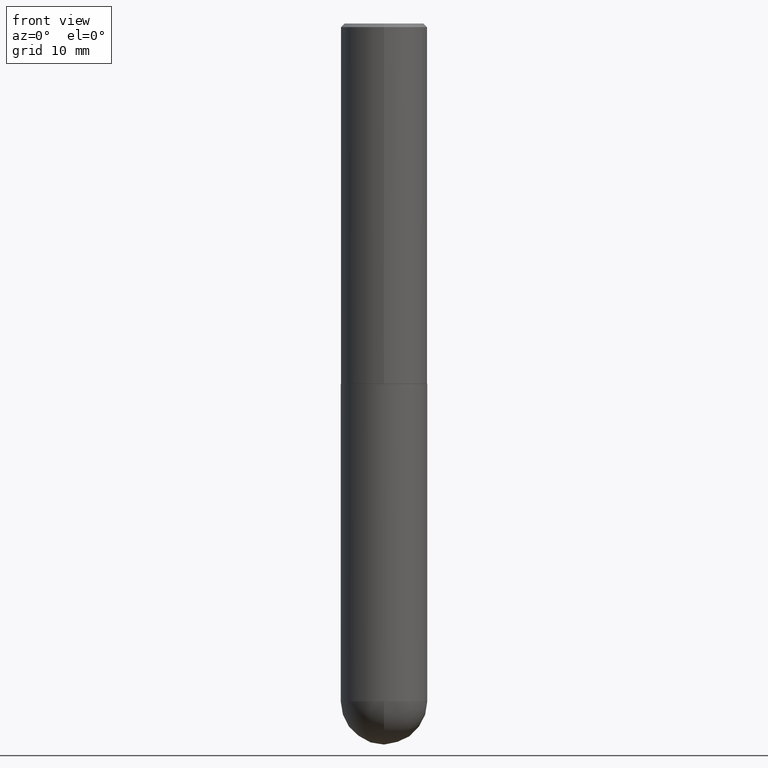
[diagram: clean part render]
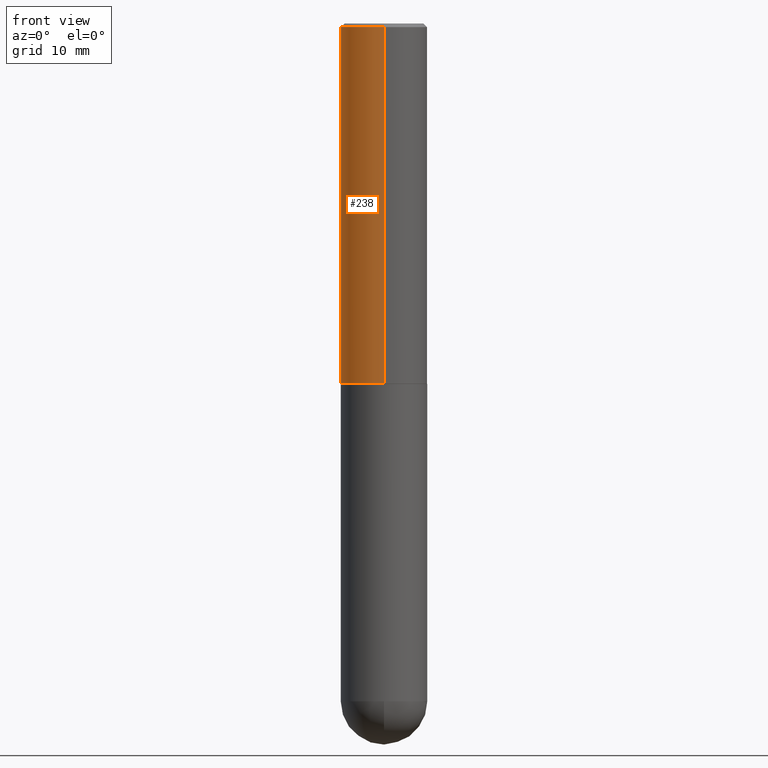
[diagram: same view with one face highlighted and labeled with its STEP entity id]
A machine part, front view. The second image highlights one B-rep face of the part: STEP entity #238.
In plain terms, the highlighted cylindrical surface (partial cylindrical patch) has radius 5.9995 mm, axis along (-0, 0, 1).
Its self-contained STEP definition (entity closure, byte-faithful):
#11 = VECTOR ( 'NONE', #204, 39.37007874015748143 ) ;
#23 = FACE_OUTER_BOUND ( 'NONE', #155, .T. ) ;
#41 = EDGE_CURVE ( 'NONE', #383, #289, #73, .T. ) ;
#51 = DIRECTION ( 'NONE',  ( -6.982962677686265922E-15, -1.000000000000000000, 3.493171675597534146E-15 ) ) ;
#70 = EDGE_CURVE ( 'NONE', #160, #131, #397, .T. ) ;
#73 = LINE ( 'NONE', #167, #11 ) ;
#74 = DIRECTION ( 'NONE',  ( -2.444288450338274442E-29, 3.493171675597534541E-15, 1.000000000000000000 ) ) ;
#77 = VECTOR ( 'NONE', #74, 39.37007874015748143 ) ;
#79 = AXIS2_PLACEMENT_3D ( 'NONE', #136, #101, #107 ) ;
#82 = CYLINDRICAL_SURFACE ( 'NONE', #110, 0.2362000000000001043 ) ;
#101 = DIRECTION ( 'NONE',  ( -2.444288450338274722E-29, 3.493171675597534541E-15, 1.000000000000000000 ) ) ;
#107 = DIRECTION ( 'NONE',  ( -6.982962677686265133E-15, -1.000000000000000000, 3.469747663417773847E-15 ) ) ;
#110 = AXIS2_PLACEMENT_3D ( 'NONE', #114, #210, #51 ) ;
#112 = EDGE_CURVE ( 'NONE', #383, #160, #290, .T. ) ;
#114 = CARTESIAN_POINT ( 'NONE',  ( 0.000000000000000000, 0.000000000000000000, 0.000000000000000000 ) ) ;
#125 = ORIENTED_EDGE ( 'NONE', *, *, #70, .T. ) ;
#131 = VERTEX_POINT ( 'NONE', #171 ) ;
#134 = CARTESIAN_POINT ( 'NONE',  ( -1.649375784469449391E-15, -0.2362000000000070710, -1.967499999999999361 ) ) ;
#136 = CARTESIAN_POINT ( 'NONE',  ( 4.809137526040556277E-29, -6.872815271738149679E-15, -1.967500000000000249 ) ) ;
#145 = CIRCLE ( 'NONE', #178, 0.2361999999999999933 ) ;
#155 = EDGE_LOOP ( 'NONE', ( #165, #281, #125, #228 ) ) ;
#160 = VERTEX_POINT ( 'NONE', #134 ) ;
#165 = ORIENTED_EDGE ( 'NONE', *, *, #41, .F. ) ;
#167 = CARTESIAN_POINT ( 'NONE',  ( 1.678301941865357183E-15, 0.2362000000000001043, -8.250871497761379229E-16 ) ) ;
#171 = CARTESIAN_POINT ( 'NONE',  ( -1.620449627073635079E-15, -0.2362000000000000766, -0.01999999999999922673 ) ) ;
#173 = EDGE_CURVE ( 'NONE', #289, #131, #145, .T. ) ;
#174 = CARTESIAN_POINT ( 'NONE',  ( 4.888576900676561635E-31, -6.986343351195086880E-17, -0.02000000000000005246 ) ) ;
#178 = AXIS2_PLACEMENT_3D ( 'NONE', #174, #365, #364 ) ;
#204 = DIRECTION ( 'NONE',  ( -2.444288450338274442E-29, 3.493171675597534541E-15, 1.000000000000000000 ) ) ;
#210 = DIRECTION ( 'NONE',  ( -2.444288450338274722E-29, 3.493171675597534541E-15, 1.000000000000000000 ) ) ;
#228 = ORIENTED_EDGE ( 'NONE', *, *, #173, .F. ) ;
#238 = ADVANCED_FACE ( 'NONE', ( #23 ), #82, .T. ) ;
#240 = CARTESIAN_POINT ( 'NONE',  ( -1.649375784469496722E-15, -0.2362000000000001043, 8.250871497761379229E-16 ) ) ;
#244 = CARTESIAN_POINT ( 'NONE',  ( 1.649375784469496525E-15, 0.2361999999999999378, -0.02000000000000087472 ) ) ;
#252 = CARTESIAN_POINT ( 'NONE',  ( 1.678301941865381835E-15, 0.2361999999999933597, -1.967500000000001137 ) ) ;
#281 = ORIENTED_EDGE ( 'NONE', *, *, #112, .T. ) ;
#289 = VERTEX_POINT ( 'NONE', #244 ) ;
#290 = CIRCLE ( 'NONE', #79, 0.2362000000000002153 ) ;
#364 = DIRECTION ( 'NONE',  ( -6.982962677686265922E-15, -1.000000000000000000, 3.487819265831411744E-15 ) ) ;
#365 = DIRECTION ( 'NONE',  ( -2.444288450338274722E-29, 3.493171675597534541E-15, 1.000000000000000000 ) ) ;
#383 = VERTEX_POINT ( 'NONE', #252 ) ;
#397 = LINE ( 'NONE', #240, #77 ) ;